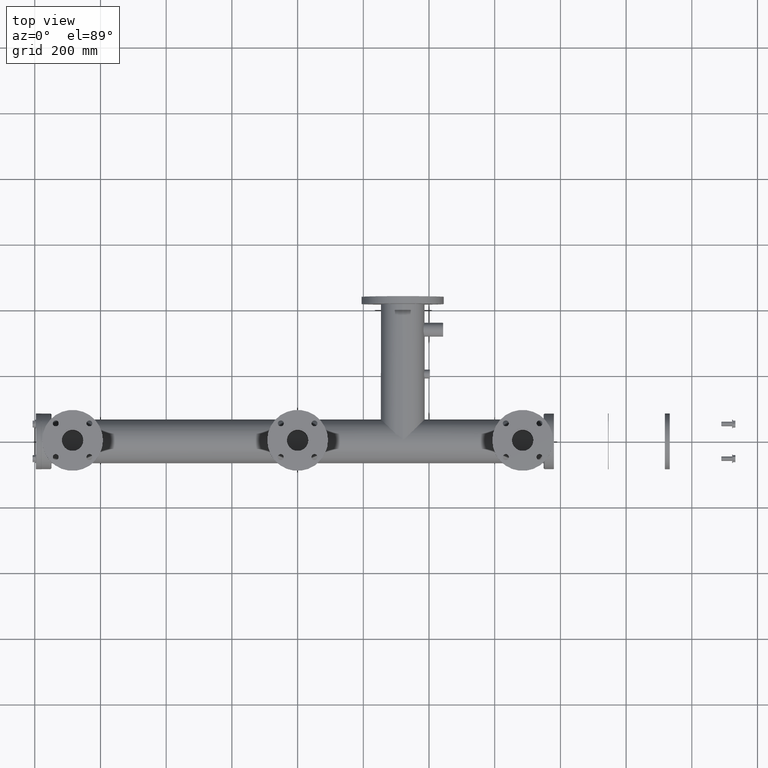
[diagram: clean part render]
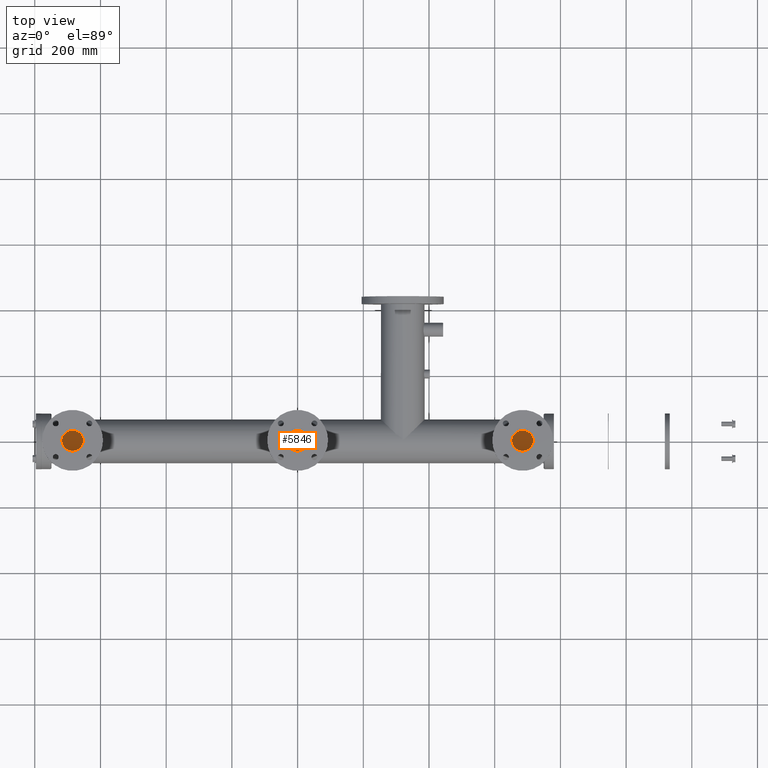
[diagram: same view with one face highlighted and labeled with its STEP entity id]
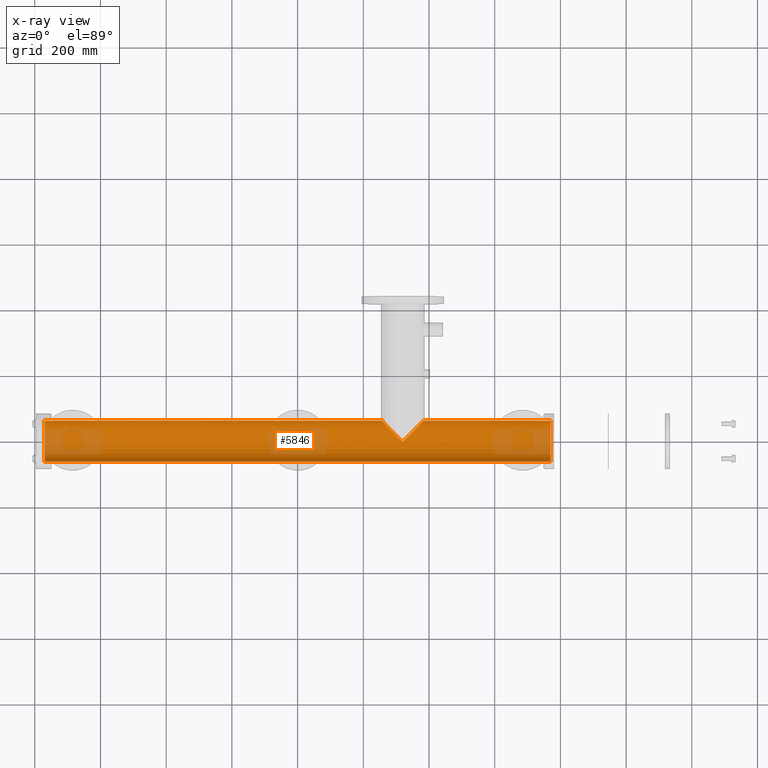
[diagram: x-ray of the same camera — body ghosted, the highlighted face saturated]
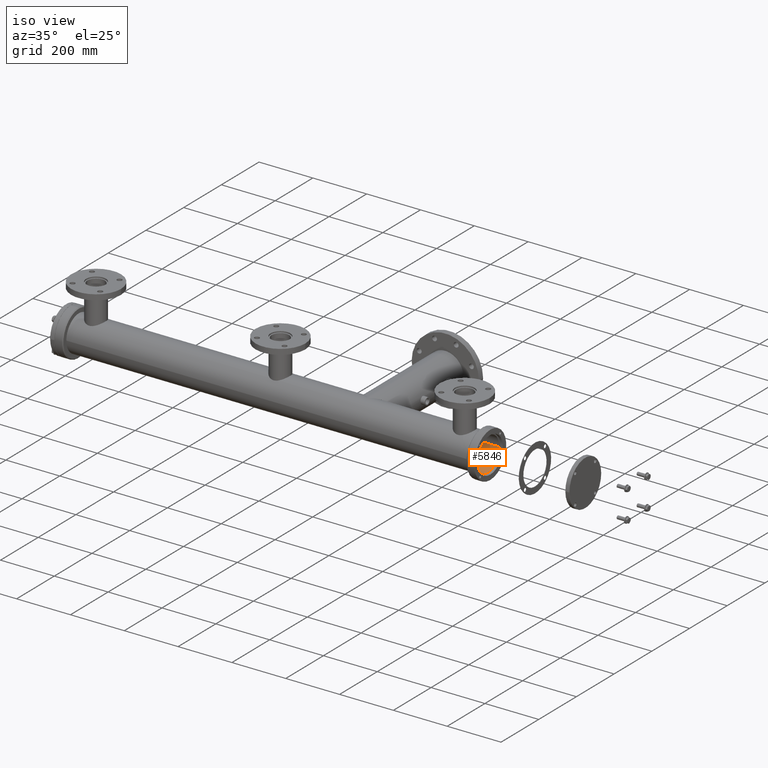
[diagram: same view with one face highlighted and labeled with its STEP entity id]
A machine part, top view. The second image highlights one B-rep face of the part: STEP entity #5846.
The next image is the same camera in x-ray: the body ghosted, the highlighted face saturated — about 17% of this face is hidden behind the body in this view.
A second angle (iso view) of the same face is appended — the face is thin or edge-on in the first view.
In plain terms, the highlighted cylindrical surface (edge-blend (fillet) strip) has radius 62.5 mm, axis along (1, 0, 0).
Its self-contained STEP definition (entity closure, byte-faithful):
#20 = VECTOR ( 'NONE', #6381, 1000.000000000000000 ) ;
#268 = CARTESIAN_POINT ( 'NONE',  ( 257.5000000000000000, 62.50000000000012079, -36.61165235168147802 ) ) ;
#363 = CARTESIAN_POINT ( 'NONE',  ( 257.5000000000000568, 62.50000000000014211, 0.000000000000000000 ) ) ;
#810 = EDGE_LOOP ( 'NONE', ( #8675, #4169, #4943, #3410, #5900, #4911, #9204 ) ) ;
#1109 = EDGE_CURVE ( 'NONE', #1455, #5075, #2589, .T. ) ;
#1407 = CARTESIAN_POINT ( 'NONE',  ( -780.0000000000000000, 62.49999999999981526, 0.000000000000000000 ) ) ;
#1455 = VERTEX_POINT ( 'NONE', #363 ) ;
#1492 = CARTESIAN_POINT ( 'NONE',  ( 320.0000000000000568, 5.033113234592954919E-13, -62.50000000000000000 ) ) ;
#1665 = DIRECTION ( 'NONE',  ( 1.000000000000000000, 3.061616997868382648E-16, -0.000000000000000000 ) ) ;
#1785 = LINE ( 'NONE', #4940, #20 ) ;
#1796 = DIRECTION ( 'NONE',  ( 1.000000000000000000, 3.061616997868382648E-16, -0.000000000000000000 ) ) ;
#2197 = VERTEX_POINT ( 'NONE', #4343 ) ;
#2333 = CARTESIAN_POINT ( 'NONE',  ( 770.0000000000000000, 2.841180574021858466E-13, 0.000000000000000000 ) ) ;
#2388 = DIRECTION ( 'NONE',  ( 0.000000000000000000, 1.000000000000000000, 0.000000000000000000 ) ) ;
#2531 = LINE ( 'NONE', #6394, #5438 ) ;
#2589 =( BOUNDED_CURVE ( )  B_SPLINE_CURVE ( 3, ( #7487, #268, #9664, #9098 ),
 .UNSPECIFIED., .F., .T. ) 
 B_SPLINE_CURVE_WITH_KNOTS ( ( 4, 4 ),
 ( 3.141592653589793116, 4.712388980384687009 ),
 .UNSPECIFIED. ) 
 CURVE ( )  GEOMETRIC_REPRESENTATION_ITEM ( )  RATIONAL_B_SPLINE_CURVE ( ( 1.000000000000000000, 0.8047378541243654926, 0.8047378541243654926, 1.000000000000000000 ) ) 
 REPRESENTATION_ITEM ( '' )  );
#2961 = DIRECTION ( 'NONE',  ( 1.000000000000000000, 3.061616997868382648E-16, -0.000000000000000000 ) ) ;
#2972 = CIRCLE ( 'NONE', #7565, 62.50000000000000000 ) ;
#3009 = CARTESIAN_POINT ( 'NONE',  ( -770.0000000000000000, 62.49999999999981526, 0.000000000000000000 ) ) ;
#3064 = VERTEX_POINT ( 'NONE', #9946 ) ;
#3094 = EDGE_CURVE ( 'NONE', #8330, #5860, #2972, .T. ) ;
#3178 = CARTESIAN_POINT ( 'NONE',  ( -780.0000000000000000, -1.904325772674134331E-13, 0.000000000000000000 ) ) ;
#3199 = CARTESIAN_POINT ( 'NONE',  ( -770.0000000000000000, -1.873709602695450544E-13, 0.000000000000000000 ) ) ;
#3282 = CARTESIAN_POINT ( 'NONE',  ( 320.0000000000000568, 5.033113234592954919E-13, -62.50000000000000000 ) ) ;
#3375 = CARTESIAN_POINT ( 'NONE',  ( 382.5000000000000568, 62.50000000000017764, 0.000000000000000000 ) ) ;
#3410 = ORIENTED_EDGE ( 'NONE', *, *, #6984, .F. ) ;
#3941 = FACE_OUTER_BOUND ( 'NONE', #810, .T. ) ;
#3968 = DIRECTION ( 'NONE',  ( -1.000000000000000000, -3.061616997868382648E-16, 0.000000000000000000 ) ) ;
#4169 = ORIENTED_EDGE ( 'NONE', *, *, #6733, .T. ) ;
#4343 = CARTESIAN_POINT ( 'NONE',  ( 382.5000000000000568, 62.50000000000017764, 0.000000000000000000 ) ) ;
#4911 = ORIENTED_EDGE ( 'NONE', *, *, #1109, .F. ) ;
#4940 = CARTESIAN_POINT ( 'NONE',  ( -780.0000000000000000, 62.49999999999981526, 0.000000000000000000 ) ) ;
#4943 = ORIENTED_EDGE ( 'NONE', *, *, #8549, .T. ) ;
#5075 = VERTEX_POINT ( 'NONE', #1492 ) ;
#5438 = VECTOR ( 'NONE', #1796, 1000.000000000000000 ) ;
#5530 = CARTESIAN_POINT ( 'NONE',  ( -770.0000000000000000, -62.50000000000019185, 7.654042494670986203E-15 ) ) ;
#5728 = EDGE_CURVE ( 'NONE', #8330, #1455, #8475, .T. ) ;
#5846 = ADVANCED_FACE ( 'NONE', ( #3941 ), #7078, .F. ) ;
#5860 = VERTEX_POINT ( 'NONE', #5530 ) ;
#5900 = ORIENTED_EDGE ( 'NONE', *, *, #9452, .F. ) ;
#6229 = AXIS2_PLACEMENT_3D ( 'NONE', #3178, #1665, #2388 ) ;
#6343 = DIRECTION ( 'NONE',  ( 0.000000000000000000, 1.000000000000000000, 0.000000000000000000 ) ) ;
#6381 = DIRECTION ( 'NONE',  ( 1.000000000000000000, 3.061616997868382648E-16, -0.000000000000000000 ) ) ;
#6394 = CARTESIAN_POINT ( 'NONE',  ( -780.0000000000000000, -62.50000000000019185, 7.654042494670957804E-15 ) ) ;
#6733 = EDGE_CURVE ( 'NONE', #5860, #3064, #2531, .T. ) ;
#6984 = EDGE_CURVE ( 'NONE', #2197, #7397, #1785, .T. ) ;
#7078 = CYLINDRICAL_SURFACE ( 'NONE', #6229, 62.50000000000000000 ) ;
#7397 = VERTEX_POINT ( 'NONE', #9621 ) ;
#7487 = CARTESIAN_POINT ( 'NONE',  ( 257.5000000000000568, 62.50000000000014211, 0.000000000000000000 ) ) ;
#7527 = AXIS2_PLACEMENT_3D ( 'NONE', #2333, #9738, #6343 ) ;
#7565 = AXIS2_PLACEMENT_3D ( 'NONE', #3199, #3968, #9481 ) ;
#7584 =( BOUNDED_CURVE ( )  B_SPLINE_CURVE ( 3, ( #3282, #9567, #8004, #3375 ),
 .UNSPECIFIED., .F., .F. ) 
 B_SPLINE_CURVE_WITH_KNOTS ( ( 4, 4 ),
 ( 4.712388980384692339, 6.283185307179586232 ),
 .UNSPECIFIED. ) 
 CURVE ( )  GEOMETRIC_REPRESENTATION_ITEM ( )  RATIONAL_B_SPLINE_CURVE ( ( 1.000000000000000000, 0.8047378541243654926, 0.8047378541243654926, 1.000000000000000000 ) ) 
 REPRESENTATION_ITEM ( '' )  );
#8004 = CARTESIAN_POINT ( 'NONE',  ( 382.5000000000000568, 62.50000000000014921, -36.61165235168148513 ) ) ;
#8030 = CIRCLE ( 'NONE', #7527, 62.49999999999999289 ) ;
#8330 = VERTEX_POINT ( 'NONE', #3009 ) ;
#8475 = LINE ( 'NONE', #1407, #9432 ) ;
#8549 = EDGE_CURVE ( 'NONE', #3064, #7397, #8030, .T. ) ;
#8675 = ORIENTED_EDGE ( 'NONE', *, *, #3094, .T. ) ;
#9098 = CARTESIAN_POINT ( 'NONE',  ( 320.0000000000000568, 5.033113234592954919E-13, -62.50000000000000000 ) ) ;
#9204 = ORIENTED_EDGE ( 'NONE', *, *, #5728, .F. ) ;
#9432 = VECTOR ( 'NONE', #2961, 1000.000000000000000 ) ;
#9452 = EDGE_CURVE ( 'NONE', #5075, #2197, #7584, .T. ) ;
#9481 = DIRECTION ( 'NONE',  ( 0.000000000000000000, -1.000000000000000000, 0.000000000000000000 ) ) ;
#9567 = CARTESIAN_POINT ( 'NONE',  ( 356.6116523516817551, 36.61165235168178356, -62.49999999999991473 ) ) ;
#9621 = CARTESIAN_POINT ( 'NONE',  ( 770.0000000000000000, 62.50000000000027711, 0.000000000000000000 ) ) ;
#9664 = CARTESIAN_POINT ( 'NONE',  ( 283.3883476483184154, 36.61165235168179777, -62.49999999999988631 ) ) ;
#9738 = DIRECTION ( 'NONE',  ( 1.000000000000000000, -3.061616997868382648E-16, 0.000000000000000000 ) ) ;
#9946 = CARTESIAN_POINT ( 'NONE',  ( 770.0000000000000000, -62.49999999999971578, 7.654042494670957804E-15 ) ) ;